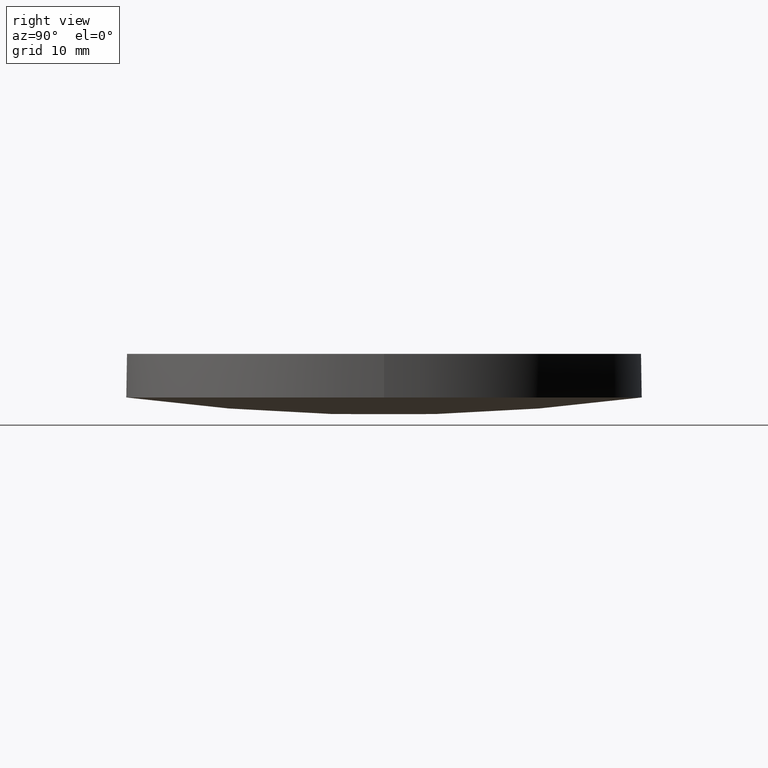
[diagram: clean part render]
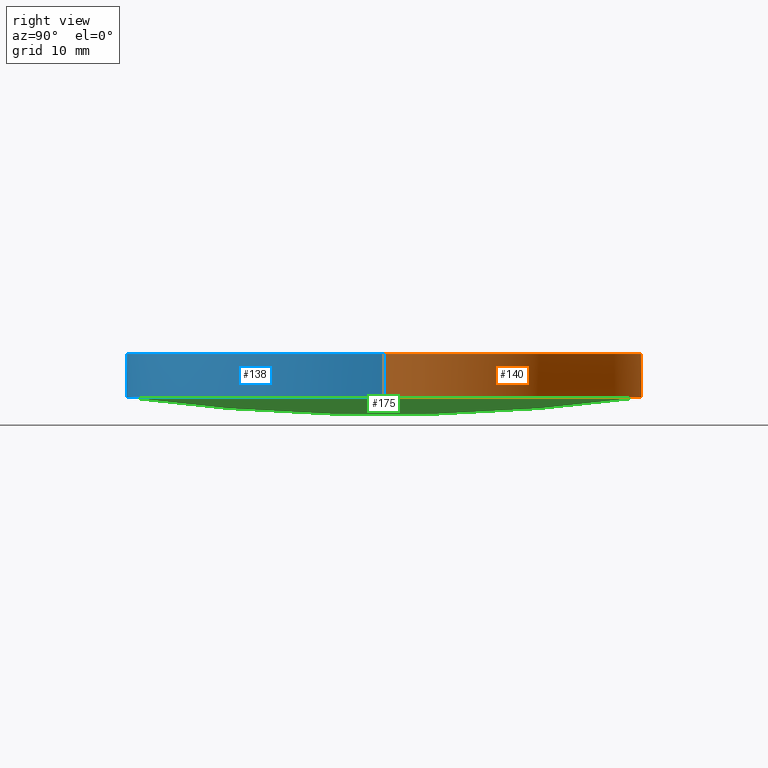
[diagram: same view with three faces highlighted in distinct colors, each labeled with its STEP entity id]
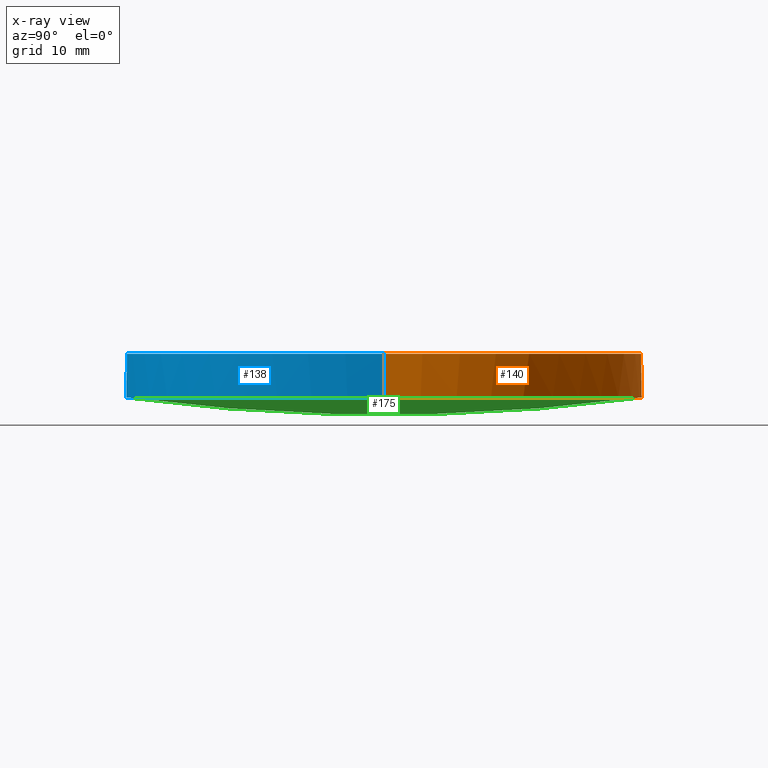
[diagram: x-ray of the same camera — body ghosted, the three highlighted faces saturated]
A machine part, right view with three faces highlighted in distinct colors.
The next image is the same camera in x-ray (body ghosted, the three faces saturated) — at least one of them is partly hidden behind the body in this view.
Their STEP definitions:

[orange] entity #140 — the highlighted cylindrical surface (partial cylindrical patch) has radius 25.4 mm, axis along (0, 0, 1).
#1 = VERTEX_POINT ( 'NONE', #43 ) ;
#5 = ORIENTED_EDGE ( 'NONE', *, *, #126, .T. ) ;
#6 = CARTESIAN_POINT ( 'NONE',  ( -25.39999999999999900, 7.995584178184967200E-015, 1.701828307744319900 ) ) ;
#18 = CIRCLE ( 'NONE', #191, 25.39999999999999900 ) ;
#20 = AXIS2_PLACEMENT_3D ( 'NONE', #179, #95, #51 ) ;
#21 = LINE ( 'NONE', #187, #154 ) ;
#29 = CARTESIAN_POINT ( 'NONE',  ( 9.992007221626412800E-016, 4.884981308350691100E-015, 1.701828307744319900 ) ) ;
#35 = DIRECTION ( 'NONE',  ( 0.0000000000000000000, 0.0000000000000000000, 1.000000000000000000 ) ) ;
#37 = VERTEX_POINT ( 'NONE', #160 ) ;
#38 = VERTEX_POINT ( 'NONE', #142 ) ;
#41 = CIRCLE ( 'NONE', #148, 25.39999999999999900 ) ;
#43 = CARTESIAN_POINT ( 'NONE',  ( -4.263256414560599900E-014, 25.39999999999995900, 1.701828307744333000 ) ) ;
#45 = ORIENTED_EDGE ( 'NONE', *, *, #169, .F. ) ;
#51 = DIRECTION ( 'NONE',  ( 1.000000000000000000, 0.0000000000000000000, 0.0000000000000000000 ) ) ;
#56 = VERTEX_POINT ( 'NONE', #146 ) ;
#61 = CARTESIAN_POINT ( 'NONE',  ( 9.992007221626412800E-016, 4.884981308350691100E-015, 6.000000000000000000 ) ) ;
#72 = DIRECTION ( 'NONE',  ( 1.000000000000000000, 0.0000000000000000000, 0.0000000000000000000 ) ) ;
#78 = DIRECTION ( 'NONE',  ( -0.0000000000000000000, -0.0000000000000000000, -1.000000000000000000 ) ) ;
#79 = EDGE_LOOP ( 'NONE', ( #112, #139, #5, #83, #45 ) ) ;
#82 = DIRECTION ( 'NONE',  ( -0.0000000000000000000, -0.0000000000000000000, -1.000000000000000000 ) ) ;
#83 = ORIENTED_EDGE ( 'NONE', *, *, #220, .F. ) ;
#91 = CIRCLE ( 'NONE', #231, 25.39999999999999900 ) ;
#92 = DIRECTION ( 'NONE',  ( -0.0000000000000000000, -0.0000000000000000000, -1.000000000000000000 ) ) ;
#95 = DIRECTION ( 'NONE',  ( 0.0000000000000000000, 0.0000000000000000000, 1.000000000000000000 ) ) ;
#110 = CARTESIAN_POINT ( 'NONE',  ( -25.39999999999999900, 7.995584178184967200E-015, 6.000000000000000000 ) ) ;
#112 = ORIENTED_EDGE ( 'NONE', *, *, #225, .F. ) ;
#123 = VECTOR ( 'NONE', #145, 1000.000000000000000 ) ;
#126 = EDGE_CURVE ( 'NONE', #133, #37, #41, .T. ) ;
#130 = DIRECTION ( 'NONE',  ( 1.000000000000000000, 0.0000000000000000000, 0.0000000000000000000 ) ) ;
#133 = VERTEX_POINT ( 'NONE', #110 ) ;
#137 = EDGE_CURVE ( 'NONE', #38, #133, #211, .T. ) ;
#139 = ORIENTED_EDGE ( 'NONE', *, *, #137, .T. ) ;
#140 = ADVANCED_FACE ( 'NONE', ( #234 ), #205, .T. ) ;
#142 = CARTESIAN_POINT ( 'NONE',  ( -25.39999999999999900, 7.995584178184967200E-015, 1.701828307744319900 ) ) ;
#145 = DIRECTION ( 'NONE',  ( 0.0000000000000000000, 0.0000000000000000000, 1.000000000000000000 ) ) ;
#146 = CARTESIAN_POINT ( 'NONE',  ( 25.39999999999999900, 4.884981308350691100E-015, 1.701828307744319900 ) ) ;
#148 = AXIS2_PLACEMENT_3D ( 'NONE', #61, #78, #218 ) ;
#154 = VECTOR ( 'NONE', #35, 1000.000000000000000 ) ;
#160 = CARTESIAN_POINT ( 'NONE',  ( 25.39999999999999900, 4.884981308350691100E-015, 6.000000000000000000 ) ) ;
#165 = CARTESIAN_POINT ( 'NONE',  ( 9.992007221626412800E-016, 4.884981308350691100E-015, 1.701828307744319900 ) ) ;
#169 = EDGE_CURVE ( 'NONE', #1, #56, #18, .T. ) ;
#179 = CARTESIAN_POINT ( 'NONE',  ( 9.992007221626412800E-016, 4.884981308350691100E-015, 1.701828307744319900 ) ) ;
#187 = CARTESIAN_POINT ( 'NONE',  ( 25.39999999999999900, 4.884981308350691100E-015, 1.701828307744319900 ) ) ;
#191 = AXIS2_PLACEMENT_3D ( 'NONE', #165, #82, #130 ) ;
#205 = CYLINDRICAL_SURFACE ( 'NONE', #20, 25.39999999999999900 ) ;
#211 = LINE ( 'NONE', #6, #123 ) ;
#218 = DIRECTION ( 'NONE',  ( 1.000000000000000000, 0.0000000000000000000, 0.0000000000000000000 ) ) ;
#220 = EDGE_CURVE ( 'NONE', #56, #37, #21, .T. ) ;
#225 = EDGE_CURVE ( 'NONE', #38, #1, #91, .T. ) ;
#231 = AXIS2_PLACEMENT_3D ( 'NONE', #29, #92, #72 ) ;
#234 = FACE_OUTER_BOUND ( 'NONE', #79, .T. ) ;

[blue] entity #138 — the highlighted cylindrical surface (partial cylindrical patch) has radius 25.4 mm, axis along (0, 0, 1).
#6 = CARTESIAN_POINT ( 'NONE',  ( -25.39999999999999900, 7.995584178184967200E-015, 1.701828307744319900 ) ) ;
#7 = CARTESIAN_POINT ( 'NONE',  ( 9.992007221626412800E-016, 4.884981308350691100E-015, 6.000000000000000000 ) ) ;
#21 = LINE ( 'NONE', #187, #154 ) ;
#22 = ORIENTED_EDGE ( 'NONE', *, *, #155, .F. ) ;
#35 = DIRECTION ( 'NONE',  ( 0.0000000000000000000, 0.0000000000000000000, 1.000000000000000000 ) ) ;
#37 = VERTEX_POINT ( 'NONE', #160 ) ;
#38 = VERTEX_POINT ( 'NONE', #142 ) ;
#42 = EDGE_CURVE ( 'NONE', #37, #133, #119, .T. ) ;
#46 = DIRECTION ( 'NONE',  ( 1.000000000000000000, 0.0000000000000000000, 0.0000000000000000000 ) ) ;
#56 = VERTEX_POINT ( 'NONE', #146 ) ;
#59 = DIRECTION ( 'NONE',  ( -0.0000000000000000000, -0.0000000000000000000, -1.000000000000000000 ) ) ;
#62 = AXIS2_PLACEMENT_3D ( 'NONE', #168, #182, #63 ) ;
#63 = DIRECTION ( 'NONE',  ( 1.000000000000000000, 0.0000000000000000000, 0.0000000000000000000 ) ) ;
#67 = AXIS2_PLACEMENT_3D ( 'NONE', #7, #59, #46 ) ;
#71 = EDGE_CURVE ( 'NONE', #178, #38, #74, .T. ) ;
#74 = CIRCLE ( 'NONE', #163, 25.39999999999999900 ) ;
#77 = CIRCLE ( 'NONE', #62, 25.39999999999999900 ) ;
#80 = DIRECTION ( 'NONE',  ( 1.000000000000000000, 0.0000000000000000000, 0.0000000000000000000 ) ) ;
#110 = CARTESIAN_POINT ( 'NONE',  ( -25.39999999999999900, 7.995584178184967200E-015, 6.000000000000000000 ) ) ;
#111 = CARTESIAN_POINT ( 'NONE',  ( 9.992007221626412800E-016, 4.884981308350691100E-015, 1.701828307744319900 ) ) ;
#116 = ORIENTED_EDGE ( 'NONE', *, *, #137, .F. ) ;
#119 = CIRCLE ( 'NONE', #67, 25.39999999999999900 ) ;
#123 = VECTOR ( 'NONE', #145, 1000.000000000000000 ) ;
#124 = EDGE_LOOP ( 'NONE', ( #116, #213, #22, #228, #127 ) ) ;
#127 = ORIENTED_EDGE ( 'NONE', *, *, #42, .T. ) ;
#128 = DIRECTION ( 'NONE',  ( 0.0000000000000000000, 0.0000000000000000000, 1.000000000000000000 ) ) ;
#133 = VERTEX_POINT ( 'NONE', #110 ) ;
#137 = EDGE_CURVE ( 'NONE', #38, #133, #211, .T. ) ;
#138 = ADVANCED_FACE ( 'NONE', ( #144 ), #200, .T. ) ;
#141 = CARTESIAN_POINT ( 'NONE',  ( 9.992007221626412800E-016, 4.884981308350691100E-015, 1.701828307744319900 ) ) ;
#142 = CARTESIAN_POINT ( 'NONE',  ( -25.39999999999999900, 7.995584178184967200E-015, 1.701828307744319900 ) ) ;
#144 = FACE_OUTER_BOUND ( 'NONE', #124, .T. ) ;
#145 = DIRECTION ( 'NONE',  ( 0.0000000000000000000, 0.0000000000000000000, 1.000000000000000000 ) ) ;
#146 = CARTESIAN_POINT ( 'NONE',  ( 25.39999999999999900, 4.884981308350691100E-015, 1.701828307744319900 ) ) ;
#154 = VECTOR ( 'NONE', #35, 1000.000000000000000 ) ;
#155 = EDGE_CURVE ( 'NONE', #56, #178, #77, .T. ) ;
#158 = AXIS2_PLACEMENT_3D ( 'NONE', #141, #128, #80 ) ;
#160 = CARTESIAN_POINT ( 'NONE',  ( 25.39999999999999900, 4.884981308350691100E-015, 6.000000000000000000 ) ) ;
#163 = AXIS2_PLACEMENT_3D ( 'NONE', #111, #177, #194 ) ;
#168 = CARTESIAN_POINT ( 'NONE',  ( 9.992007221626412800E-016, 4.884981308350691100E-015, 1.701828307744319900 ) ) ;
#177 = DIRECTION ( 'NONE',  ( -0.0000000000000000000, -0.0000000000000000000, -1.000000000000000000 ) ) ;
#178 = VERTEX_POINT ( 'NONE', #198 ) ;
#182 = DIRECTION ( 'NONE',  ( -0.0000000000000000000, -0.0000000000000000000, -1.000000000000000000 ) ) ;
#187 = CARTESIAN_POINT ( 'NONE',  ( 25.39999999999999900, 4.884981308350691100E-015, 1.701828307744319900 ) ) ;
#194 = DIRECTION ( 'NONE',  ( 1.000000000000000000, 0.0000000000000000000, 0.0000000000000000000 ) ) ;
#198 = CARTESIAN_POINT ( 'NONE',  ( -4.263256414560599900E-014, -25.40000000000001300, 1.701828307744305300 ) ) ;
#200 = CYLINDRICAL_SURFACE ( 'NONE', #158, 25.39999999999999900 ) ;
#211 = LINE ( 'NONE', #6, #123 ) ;
#213 = ORIENTED_EDGE ( 'NONE', *, *, #71, .F. ) ;
#220 = EDGE_CURVE ( 'NONE', #56, #37, #21, .T. ) ;
#228 = ORIENTED_EDGE ( 'NONE', *, *, #220, .T. ) ;

[green] entity #175 — the highlighted face is a freeform B-spline surface patch.
#1 = VERTEX_POINT ( 'NONE', #43 ) ;
#10 = CARTESIAN_POINT ( 'NONE',  ( 16.92308615580274300, -25.70294600501159700, 2.312552776829398300 ) ) ;
#12 = CARTESIAN_POINT ( 'NONE',  ( 17.13185817080187300, -8.620253173283165500, -0.007792046290208383800 ) ) ;
#16 =( BOUNDED_SURFACE ( )  B_SPLINE_SURFACE ( 3, 3, ( 
 ( #99, #84, #10, #101 ),
 ( #197, #100, #12, #85 ),
 ( #167, #223, #117, #131 ),
 ( #26, #66, #224, #180 ) ),
 .UNSPECIFIED., .F., .F., .T. ) 
 B_SPLINE_SURFACE_WITH_KNOTS ( ( 4, 4 ),
 ( 4, 4 ),
 ( 0.0000000000000000000, 1.000000000000000000 ),
 ( 0.0000000000000000000, 1.000000000000000000 ),
 .UNSPECIFIED. ) 
 GEOMETRIC_REPRESENTATION_ITEM ( )  RATIONAL_B_SPLINE_SURFACE ( (
 ( 1.000000000000000000, 0.9984906929497666700, 0.9984906929497666700, 1.000000000000000000),
 ( 0.9938975684485722400, 0.9923974718413030000, 0.9923974718413030000, 0.9938975684485722400),
 ( 0.9938975684485722400, 0.9923974718413030000, 0.9923974718413030000, 0.9938975684485722400),
 ( 1.000000000000000000, 0.9984906929497666700, 0.9984906929497666700, 1.000000000000000000) ) ) 
 REPRESENTATION_ITEM ( '' )  SURFACE ( )  );
#18 = CIRCLE ( 'NONE', #191, 25.39999999999999900 ) ;
#26 = CARTESIAN_POINT ( 'NONE',  ( -4.263256414560599900E-014, 25.70294600501151900, 1.742854451087766400 ) ) ;
#43 = CARTESIAN_POINT ( 'NONE',  ( -4.263256414560599900E-014, 25.39999999999995900, 1.701828307744333000 ) ) ;
#48 = CIRCLE ( 'NONE', #215, 190.4000000000000100 ) ;
#56 = VERTEX_POINT ( 'NONE', #146 ) ;
#62 = AXIS2_PLACEMENT_3D ( 'NONE', #168, #182, #63 ) ;
#63 = DIRECTION ( 'NONE',  ( 1.000000000000000000, 0.0000000000000000000, 0.0000000000000000000 ) ) ;
#66 = CARTESIAN_POINT ( 'NONE',  ( 8.471132232602942100, 25.70294600501151500, 1.742854451087766600 ) ) ;
#77 = CIRCLE ( 'NONE', #62, 25.39999999999999900 ) ;
#82 = DIRECTION ( 'NONE',  ( -0.0000000000000000000, -0.0000000000000000000, -1.000000000000000000 ) ) ;
#84 = CARTESIAN_POINT ( 'NONE',  ( 8.471132232602942100, -25.70294600501159700, 1.742854451087738800 ) ) ;
#85 = CARTESIAN_POINT ( 'NONE',  ( 25.62992300475451300, -8.620253173283167300, 1.143049424638433700 ) ) ;
#86 = DIRECTION ( 'NONE',  ( 1.000000000000000000, 0.0000000000000000000, 0.0000000000000000000 ) ) ;
#87 = EDGE_LOOP ( 'NONE', ( #162, #109, #219 ) ) ;
#99 = CARTESIAN_POINT ( 'NONE',  ( -4.263256414560599900E-014, -25.70294600501160100, 1.742854451087738600 ) ) ;
#100 = CARTESIAN_POINT ( 'NONE',  ( 8.575636536914967000, -8.620253173283163800, -0.5845184676352183100 ) ) ;
#101 = CARTESIAN_POINT ( 'NONE',  ( 25.31759198866574300, -25.70294600501160100, 3.449369879214070800 ) ) ;
#109 = ORIENTED_EDGE ( 'NONE', *, *, #204, .T. ) ;
#117 = CARTESIAN_POINT ( 'NONE',  ( 17.13185817080187300, 8.620253173283085600, -0.007792046290183663900 ) ) ;
#130 = DIRECTION ( 'NONE',  ( 1.000000000000000000, 0.0000000000000000000, 0.0000000000000000000 ) ) ;
#131 = CARTESIAN_POINT ( 'NONE',  ( 25.62992300475451300, 8.620253173283083800, 1.143049424638458600 ) ) ;
#146 = CARTESIAN_POINT ( 'NONE',  ( 25.39999999999999900, 4.884981308350691100E-015, 1.701828307744319900 ) ) ;
#155 = EDGE_CURVE ( 'NONE', #56, #178, #77, .T. ) ;
#162 = ORIENTED_EDGE ( 'NONE', *, *, #155, .T. ) ;
#165 = CARTESIAN_POINT ( 'NONE',  ( 9.992007221626412800E-016, 4.884981308350691100E-015, 1.701828307744319900 ) ) ;
#166 = FACE_OUTER_BOUND ( 'NONE', #87, .T. ) ;
#167 = CARTESIAN_POINT ( 'NONE',  ( -4.263256414560600500E-014, 8.620253173283085600, -0.5845184676351937700 ) ) ;
#168 = CARTESIAN_POINT ( 'NONE',  ( 9.992007221626412800E-016, 4.884981308350691100E-015, 1.701828307744319900 ) ) ;
#169 = EDGE_CURVE ( 'NONE', #1, #56, #18, .T. ) ;
#175 = ADVANCED_FACE ( 'NONE', ( #166 ), #16, .T. ) ;
#178 = VERTEX_POINT ( 'NONE', #198 ) ;
#180 = CARTESIAN_POINT ( 'NONE',  ( 25.31759198866574300, 25.70294600501151900, 3.449369879214098300 ) ) ;
#182 = DIRECTION ( 'NONE',  ( -0.0000000000000000000, -0.0000000000000000000, -1.000000000000000000 ) ) ;
#191 = AXIS2_PLACEMENT_3D ( 'NONE', #165, #82, #130 ) ;
#197 = CARTESIAN_POINT ( 'NONE',  ( -4.263256414560600500E-014, -8.620253173283165500, -0.5845184676352183100 ) ) ;
#198 = CARTESIAN_POINT ( 'NONE',  ( -4.263256414560599900E-014, -25.40000000000001300, 1.701828307744305300 ) ) ;
#204 = EDGE_CURVE ( 'NONE', #178, #1, #48, .T. ) ;
#207 = DIRECTION ( 'NONE',  ( 0.0000000000000000000, -1.000000000000000000, -5.831003280594309600E-016 ) ) ;
#215 = AXIS2_PLACEMENT_3D ( 'NONE', #232, #86, #207 ) ;
#219 = ORIENTED_EDGE ( 'NONE', *, *, #169, .T. ) ;
#223 = CARTESIAN_POINT ( 'NONE',  ( 8.575636536914965200, 8.620253173283087400, -0.5845184676351936600 ) ) ;
#224 = CARTESIAN_POINT ( 'NONE',  ( 16.92308615580273900, 25.70294600501151500, 2.312552776829426300 ) ) ;
#232 = CARTESIAN_POINT ( 'NONE',  ( -4.263256414560599900E-014, -5.684341886080800200E-014, 190.4000000000000100 ) ) ;